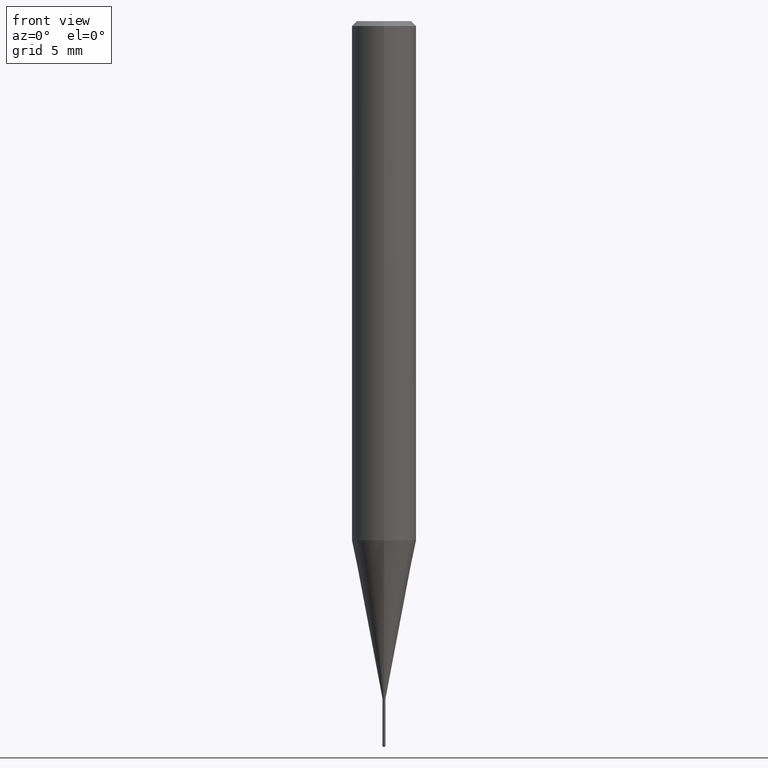
[diagram: clean part render]
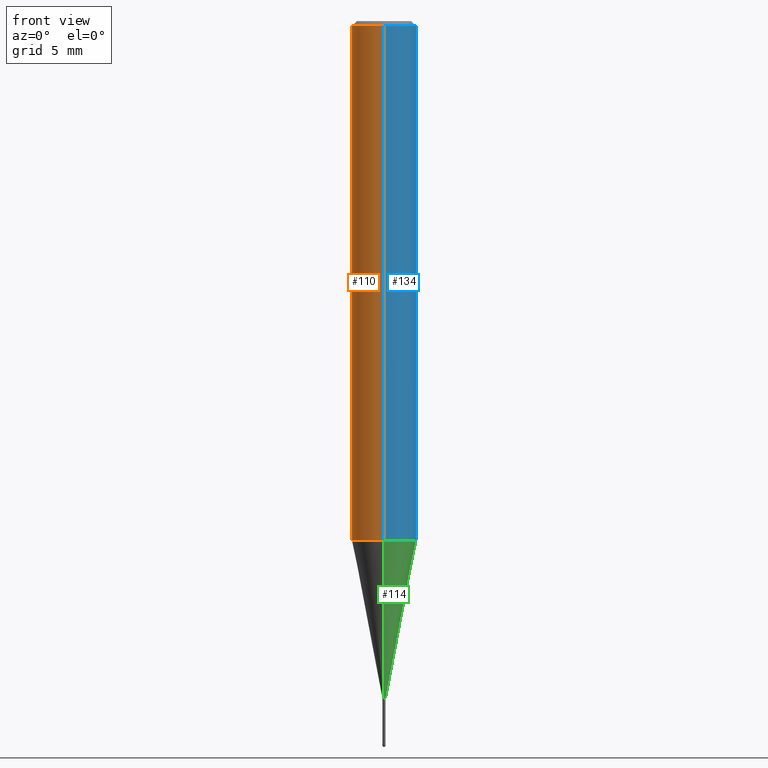
[diagram: same view with three faces highlighted in distinct colors, each labeled with its STEP entity id]
A machine part, front view with three faces highlighted in distinct colors.
Their STEP definitions:

[orange] entity #110 — the highlighted cylindrical surface (edge-blend (fillet) strip) has radius 2 mm, axis along (-0, -0, 1).
#110=ADVANCED_FACE('',(#255),#256,.T.);
#120=VERTEX_POINT('',#268);
#122=EDGE_CURVE('',#120,#206,#270,.T.);
#128=EDGE_CURVE('',#210,#136,#277,.T.);
#136=VERTEX_POINT('',#286);
#140=EDGE_CURVE('',#120,#136,#290,.T.);
#148=EDGE_CURVE('',#206,#210,#298,.T.);
#206=VERTEX_POINT('',#364);
#210=VERTEX_POINT('',#368);
#255=FACE_OUTER_BOUND('',#408,.T.);
#256=CYLINDRICAL_SURFACE('',#409,2.0);
#268=CARTESIAN_POINT('',(2.44921270764475E-016,-2.0,-32.2));
#270=LINE('',#425,#426);
#277=LINE('',#435,#436);
#286=CARTESIAN_POINT('',(0.0,2.0,-32.2));
#290=CIRCLE('',#453,2.0);
#298=CIRCLE('',#467,2.0);
#364=CARTESIAN_POINT('',(2.44921270764475E-016,-2.0,-0.300000000000001));
#368=CARTESIAN_POINT('',(0.0,2.0,-0.300000000000001));
#408=EDGE_LOOP('',(#600,#601,#602,#603));
#409=AXIS2_PLACEMENT_3D('',#604,#605,#606);
#425=CARTESIAN_POINT('',(2.44921270764475E-016,-2.0,-16.25));
#426=VECTOR('',#624,1.0);
#435=CARTESIAN_POINT('',(-2.44921270764475E-016,2.0,-16.25));
#436=VECTOR('',#636,1.0);
#453=AXIS2_PLACEMENT_3D('',#649,#650,#651);
#467=AXIS2_PLACEMENT_3D('',#657,#658,#659);
#600=ORIENTED_EDGE('',*,*,#128,.T.);
#601=ORIENTED_EDGE('',*,*,#140,.F.);
#602=ORIENTED_EDGE('',*,*,#122,.T.);
#603=ORIENTED_EDGE('',*,*,#148,.T.);
#604=CARTESIAN_POINT('',(0.0,0.0,-16.25));
#605=DIRECTION('',(-0.0,-0.0,1.0));
#606=DIRECTION('',(0.0,1.0,0.0));
#624=DIRECTION('',(-0.0,-0.0,1.0));
#636=DIRECTION('',(0.0,0.0,-1.0));
#649=CARTESIAN_POINT('',(0.0,0.0,-32.2));
#650=DIRECTION('',(0.0,0.0,-1.0));
#651=DIRECTION('',(0.0,1.0,0.0));
#657=CARTESIAN_POINT('',(0.0,0.0,-0.300000000000001));
#658=DIRECTION('',(0.0,0.0,-1.0));
#659=DIRECTION('',(0.0,1.0,0.0));

[blue] entity #134 — the highlighted cylindrical surface (edge-blend (fillet) strip) has radius 2 mm, axis along (-0, -0, 1).
#96=EDGE_CURVE('',#136,#120,#238,.T.);
#120=VERTEX_POINT('',#268);
#122=EDGE_CURVE('',#120,#206,#270,.T.);
#124=EDGE_CURVE('',#210,#206,#272,.T.);
#128=EDGE_CURVE('',#210,#136,#277,.T.);
#134=ADVANCED_FACE('',(#283),#284,.T.);
#136=VERTEX_POINT('',#286);
#206=VERTEX_POINT('',#364);
#210=VERTEX_POINT('',#368);
#238=CIRCLE('',#389,2.0);
#268=CARTESIAN_POINT('',(2.44921270764475E-016,-2.0,-32.2));
#270=LINE('',#425,#426);
#272=CIRCLE('',#429,2.0);
#277=LINE('',#435,#436);
#283=FACE_OUTER_BOUND('',#445,.T.);
#284=CYLINDRICAL_SURFACE('',#446,2.0);
#286=CARTESIAN_POINT('',(0.0,2.0,-32.2));
#364=CARTESIAN_POINT('',(2.44921270764475E-016,-2.0,-0.300000000000001));
#368=CARTESIAN_POINT('',(0.0,2.0,-0.300000000000001));
#389=AXIS2_PLACEMENT_3D('',#567,#568,#569);
#425=CARTESIAN_POINT('',(2.44921270764475E-016,-2.0,-16.25));
#426=VECTOR('',#624,1.0);
#429=AXIS2_PLACEMENT_3D('',#625,#626,#627);
#435=CARTESIAN_POINT('',(-2.44921270764475E-016,2.0,-16.25));
#436=VECTOR('',#636,1.0);
#445=EDGE_LOOP('',(#642,#643,#644,#645));
#446=AXIS2_PLACEMENT_3D('',#646,#647,#648);
#567=CARTESIAN_POINT('',(0.0,0.0,-32.2));
#568=DIRECTION('',(0.0,0.0,-1.0));
#569=DIRECTION('',(0.0,1.0,0.0));
#624=DIRECTION('',(-0.0,-0.0,1.0));
#625=CARTESIAN_POINT('',(0.0,0.0,-0.300000000000001));
#626=DIRECTION('',(0.0,0.0,-1.0));
#627=DIRECTION('',(0.0,1.0,0.0));
#636=DIRECTION('',(0.0,0.0,-1.0));
#642=ORIENTED_EDGE('',*,*,#128,.F.);
#643=ORIENTED_EDGE('',*,*,#124,.T.);
#644=ORIENTED_EDGE('',*,*,#122,.F.);
#645=ORIENTED_EDGE('',*,*,#96,.F.);
#646=CARTESIAN_POINT('',(0.0,0.0,-16.25));
#647=DIRECTION('',(-0.0,-0.0,1.0));
#648=DIRECTION('',(0.0,1.0,0.0));

[green] entity #114 — the highlighted conical surface has half-angle 11 deg.
#104=EDGE_CURVE('',#194,#188,#247,.T.);
#112=EDGE_CURVE('',#180,#194,#258,.T.);
#114=ADVANCED_FACE('',(#260),#261,.T.);
#116=VERTEX_POINT('',#263);
#180=VERTEX_POINT('',#336);
#188=VERTEX_POINT('',#345);
#192=EDGE_CURVE('',#116,#188,#349,.T.);
#194=VERTEX_POINT('',#351);
#198=EDGE_CURVE('',#116,#180,#356,.T.);
#247=LINE('',#399,#400);
#258=CIRCLE('',#412,0.09495);
#260=FACE_OUTER_BOUND('',#414,.T.);
#261=CONICAL_SURFACE('',#415,1.04745,0.191993392580482);
#263=CARTESIAN_POINT('',(0.0,1.99995,-32.2));
#336=CARTESIAN_POINT('',(0.0,0.09495,-42.0));
#345=CARTESIAN_POINT('',(2.44915147732706E-016,-1.99995,-32.2));
#349=CIRCLE('',#527,1.99995);
#351=CARTESIAN_POINT('',(1.16276373295435E-017,-0.09495,-42.0));
#356=LINE('',#535,#536);
#399=CARTESIAN_POINT('',(1.28271392531125E-016,-1.04745,-37.1));
#400=VECTOR('',#582,1.0);
#412=AXIS2_PLACEMENT_3D('',#607,#608,#609);
#414=EDGE_LOOP('',(#611,#612,#613,#614));
#415=AXIS2_PLACEMENT_3D('',#615,#616,#617);
#527=AXIS2_PLACEMENT_3D('',#720,#721,#722);
#535=CARTESIAN_POINT('',(-1.28271392531125E-016,1.04745,-37.1));
#536=VECTOR('',#729,1.0);
#582=DIRECTION('',(2.33674533048507E-017,-0.190816038410332,0.981625814394358));
#607=CARTESIAN_POINT('',(0.0,0.0,-42.0));
#608=DIRECTION('',(0.0,0.0,-1.0));
#609=DIRECTION('',(0.0,1.0,0.0));
#611=ORIENTED_EDGE('',*,*,#198,.F.);
#612=ORIENTED_EDGE('',*,*,#192,.T.);
#613=ORIENTED_EDGE('',*,*,#104,.F.);
#614=ORIENTED_EDGE('',*,*,#112,.F.);
#615=CARTESIAN_POINT('',(0.0,0.0,-37.1));
#616=DIRECTION('',(-0.0,-0.0,1.0));
#617=DIRECTION('',(0.0,1.0,0.0));
#720=CARTESIAN_POINT('',(0.0,0.0,-32.2));
#721=DIRECTION('',(0.0,0.0,-1.0));
#722=DIRECTION('',(0.0,1.0,0.0));
#729=DIRECTION('',(2.33674533048507E-017,-0.190816038410332,-0.981625814394358));